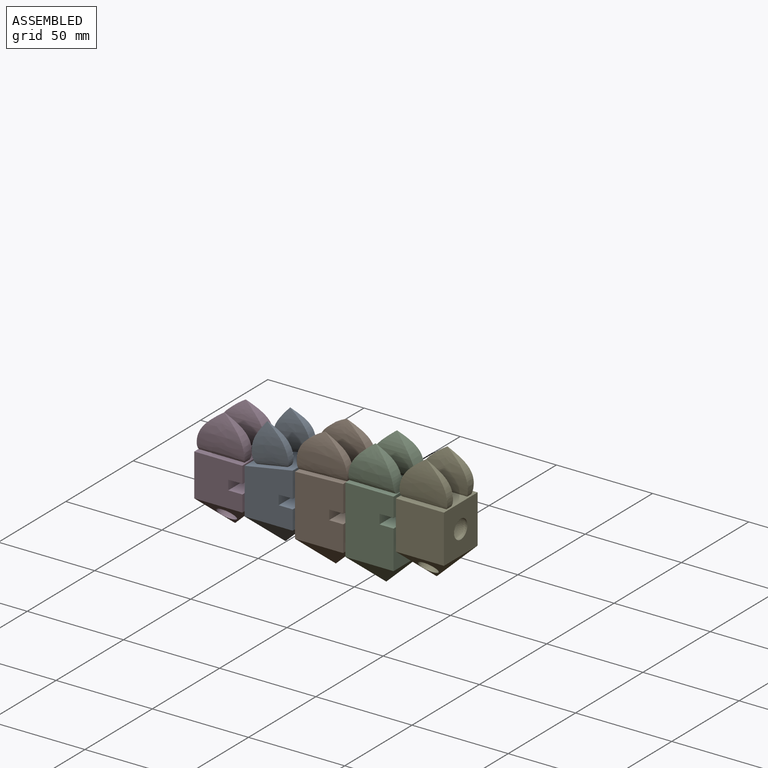
[diagram: assembled view]
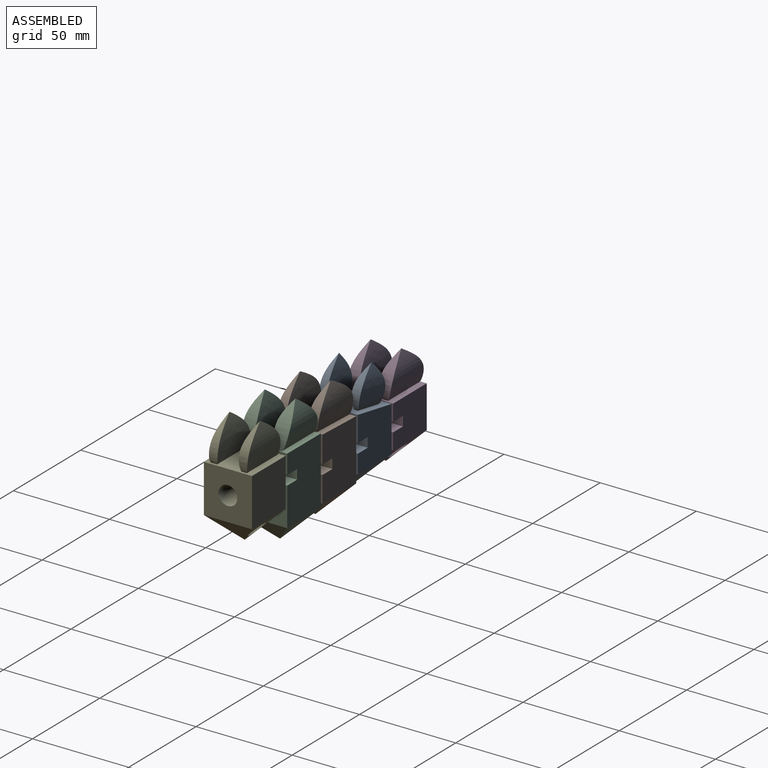
[diagram: assembled view, second angle]
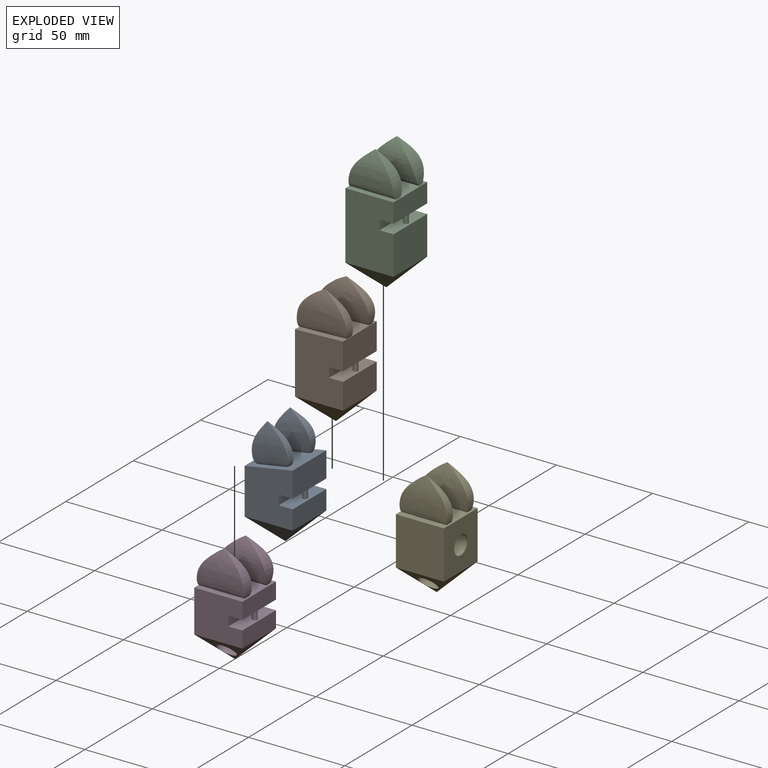
[diagram: exploded view]
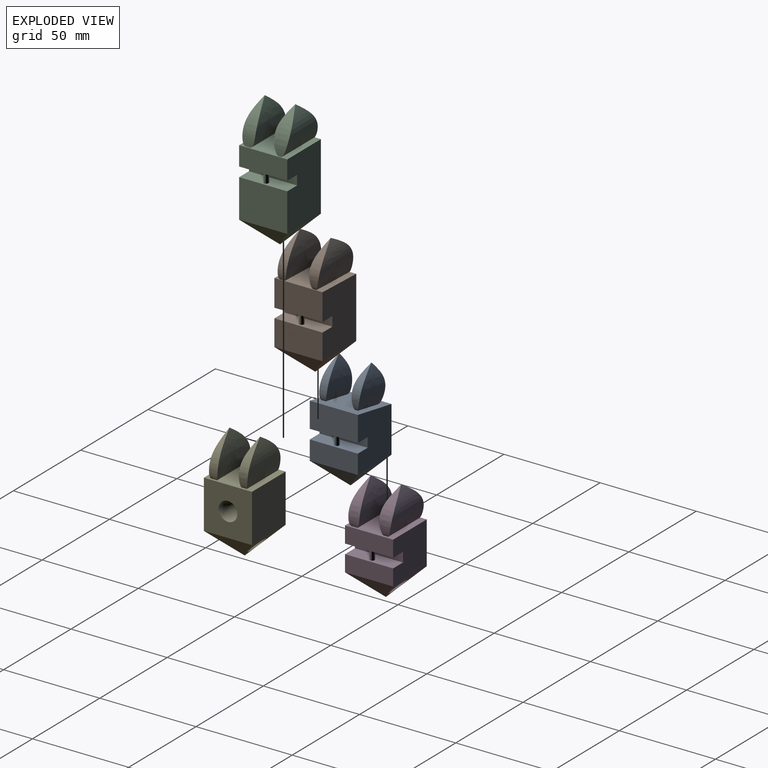
[diagram: exploded view, second angle]
ASSEMBLY  parts=5 mates=8
PART A: 29 faces, bbox 32.8x25x58.7 mm
  f0: plane 25x23.8mm, normal (-1,0,0), area 572.9mm2, adj f2,f4,f5,f7,f22,f23,f24,f25
  f1: plane 25x13.2mm, normal (1,0,0), area 330.1mm2, adj f2,f4,f5,f19
  f2: plane 28.2x25mm, normal (0,-1,0), area 613.5mm2, adj f0,f1,f3,f5,f6,f18,f19,f20
  f3: plane 25x10mm, normal (1,0,0), area 250mm2, adj f2,f4,f9,f18
  f4: plane 28.2x25mm, normal (0,1,0), area 613.5mm2, adj f0,f1,f3,f5,f8,f18,f19,f20
  f5: plane 25x25mm, normal (-0.17,0,0.98), area 599mm2, adj f0,f1,f2,f4,f10,f11,f12,f13
  f6: plane 25x13mm, normal (0,-0.72,-0.69), area 225.4mm2, adj f2,f7,f9
  f7: plane 25x13mm, normal (-0.72,0,-0.69), area 225.4mm2, adj f0,f6,f8
  f8: plane 25x13mm, normal (0,0.72,-0.69), area 225.4mm2, adj f4,f7,f9
  f9: plane 25x13mm, normal (0.72,0,-0.69), area 225.4mm2, adj f3,f6,f8
  f10: bspline ~18.41x12.52mm, area 68mm2, adj f5,f11,f13
  f11: bspline ~21.3x21.29mm, area 286.2mm2, adj f5,f10,f12
  f12: bspline ~21.29x8.84mm, area 68mm2, adj f5,f11,f13
  f13: bspline ~21.3x21.29mm, area 286.2mm2, adj f5,f10,f12
  f14: bspline ~18.41x13.3mm, area 74.5mm2, adj f5,f15,f17
  f15: bspline ~23.24x21.14mm, area 292.9mm2, adj f5,f14,f16
  f16: bspline ~21.14x10.01mm, area 74.5mm2, adj f5,f15,f17
  f17: bspline ~23.24x21.14mm, area 292.9mm2, adj f5,f14,f16
  f18: plane 25x7.3mm, normal (0,0,1), area 177.6mm2, adj f2,f3,f4,f20,f21
  f19: plane 25x7.3mm, normal (0,0,-1), area 177.6mm2, adj f1,f2,f4,f20,f21
  f20: plane 25x5mm, normal (1,0,0), area 125mm2, adj f2,f4,f18,f19
  f21: cylinder r=1.25mm len=5mm, axis (0,0,-1), area 39.3mm2, adj f18,f19
  f22: plane 7.79x7.32mm, normal (0,0,-1), area 40mm2, adj f0,f23,f25,f26,f27,f28
  f23: plane 3.8x3mm, normal (0,-1,0), area 11.4mm2, adj f0,f22,f24,f28
  f24: plane 7.79x7.32mm, normal (0,0,1), area 40mm2, adj f0,f23,f25,f26,f27,f28
  f25: plane 3.8x3mm, normal (0,1,0), area 11.4mm2, adj f0,f22,f24,f27
  f26: cylinder r=1.8mm len=3.6mm, axis (0,0,1), area 33.9mm2, adj f22,f24
  f27: cylinder r=4mm len=3.99mm, axis (0,0,1), area 17.8mm2, adj f22,f24,f25,f28
  f28: cylinder r=4mm len=3.99mm, axis (0,0,-1), area 17.8mm2, adj f22,f23,f24,f27
PART B: 29 faces, bbox 35x25x65 mm
  f0: plane 31.56x25mm, normal (-1,0,0), area 767.1mm2, adj f2,f4,f5,f7,f22,f23,f24,f25
  f1: plane 25x13.94mm, normal (1,0,0), area 348.4mm2, adj f2,f4,f5,f19
  f2: plane 32.44x25mm, normal (0,-1,0), area 763.5mm2, adj f0,f1,f3,f5,f6,f18,f19,f20
  f3: plane 25x13.5mm, normal (1,0,0), area 337.5mm2, adj f2,f4,f9,f18
  f4: plane 32.44x25mm, normal (0,1,0), area 763.5mm2, adj f0,f1,f3,f5,f8,f18,f19,f20
  f5: plane 25x25mm, normal (-0.03,0,1), area 553.4mm2, adj f0,f1,f2,f4,f10,f11,f12,f13
  f6: plane 25x13mm, normal (0,-0.72,-0.69), area 225.4mm2, adj f2,f7,f9
  f7: plane 25x13mm, normal (-0.72,0,-0.69), area 225.4mm2, adj f0,f6,f8
  f8: plane 25x13mm, normal (0,0.72,-0.69), area 225.4mm2, adj f4,f7,f9
  f9: plane 25x13mm, normal (0.72,0,-0.69), area 225.4mm2, adj f3,f6,f8
  f10: bspline ~19.58x13.91mm, area 80.6mm2, adj f5,f11,f13
  f11: bspline ~27.96x20.45mm, area 404.8mm2, adj f5,f10,f12
  f12: bspline ~20.45x14.29mm, area 86.1mm2, adj f5,f11,f13
  f13: bspline ~27.96x20.45mm, area 406.3mm2, adj f5,f10,f12
  f14: bspline ~19.58x14.75mm, area 90.4mm2, adj f5,f15,f17
  f15: bspline ~29.57x20.43mm, area 409mm2, adj f5,f14,f16
  f16: bspline ~20.43x14.94mm, area 95.7mm2, adj f5,f15,f17
  f17: bspline ~29.57x20.43mm, area 407.7mm2, adj f5,f14,f16
  f18: plane 25x7.3mm, normal (0,0,1), area 177.6mm2, adj f2,f3,f4,f20,f21
  f19: plane 25x7.3mm, normal (0,0,-1), area 177.6mm2, adj f1,f2,f4,f20,f21
  f20: plane 25x5mm, normal (1,0,0), area 125mm2, adj f2,f4,f18,f19
  f21: cylinder r=1.25mm len=5mm, axis (0,0,-1), area 39.3mm2, adj f18,f19
  f22: plane 7.79x7.32mm, normal (0,0,-1), area 40mm2, adj f0,f23,f25,f26,f27,f28
  f23: plane 3.8x3mm, normal (0,-1,0), area 11.4mm2, adj f0,f22,f24,f28
  f24: plane 7.79x7.32mm, normal (0,0,1), area 40mm2, adj f0,f23,f25,f26,f27,f28
  f25: plane 3.8x3mm, normal (0,1,0), area 11.4mm2, adj f0,f22,f24,f27
  f26: cylinder r=1.8mm len=3.6mm, axis (0,0,1), area 33.9mm2, adj f22,f24
  f27: cylinder r=4mm len=3.99mm, axis (0,0,1), area 17.8mm2, adj f22,f24,f25,f28
  f28: cylinder r=4mm len=3.99mm, axis (0,0,-1), area 17.8mm2, adj f22,f23,f24,f27
PART C: 29 faces, bbox 32.8x26.6x68 mm
  f0: plane 35x25mm, normal (-1,0,0), area 853mm2, adj f2,f4,f5,f7,f22,f23,f24,f25
  f1: plane 25x10mm, normal (1,0,0), area 250mm2, adj f2,f4,f5,f19
  f2: plane 35x25mm, normal (0,-1,0), area 838.5mm2, adj f0,f1,f3,f5,f6,f18,f19,f20
  f3: plane 25x20mm, normal (1,0,0), area 500mm2, adj f2,f4,f9,f18
  f4: plane 35x25mm, normal (0,1,0), area 838.5mm2, adj f0,f1,f3,f5,f8,f18,f19,f20
  f5: plane 25x25mm, normal (0,0,1), area 553mm2, adj f0,f1,f2,f4,f10,f11,f12,f13
  f6: plane 25x13mm, normal (0,-0.72,-0.69), area 225.4mm2, adj f2,f7,f9
  f7: plane 25x13mm, normal (-0.72,0,-0.69), area 225.4mm2, adj f0,f6,f8
  f8: plane 25x13mm, normal (0,0.72,-0.69), area 225.4mm2, adj f4,f7,f9
  f9: plane 25x13mm, normal (0.72,0,-0.69), area 225.4mm2, adj f3,f6,f8
  f10: bspline ~20x12mm, area 114.1mm2, adj f5,f11,f13
  f11: bspline ~24x20mm, area 368.9mm2, adj f5,f10,f12
  f12: bspline ~20x12mm, area 114.1mm2, adj f5,f11,f13
  f13: bspline ~24x20mm, area 370.7mm2, adj f5,f10,f12
  f14: bspline ~20x12mm, area 128.3mm2, adj f5,f15,f17
  f15: bspline ~24x20mm, area 364.3mm2, adj f5,f14,f16
  f16: bspline ~20x12mm, area 128.3mm2, adj f5,f15,f17
  f17: bspline ~24x20mm, area 363mm2, adj f5,f14,f16
  f18: plane 25x7.3mm, normal (0,0,1), area 177.6mm2, adj f2,f3,f4,f20,f21
  f19: plane 25x7.3mm, normal (0,0,-1), area 177.6mm2, adj f1,f2,f4,f20,f21
  f20: plane 25x5mm, normal (1,0,0), area 125mm2, adj f2,f4,f18,f19
  f21: cylinder r=1.25mm len=5mm, axis (0,0,-1), area 39.3mm2, adj f18,f19
  f22: plane 7.79x7.32mm, normal (0,0,-1), area 40mm2, adj f0,f23,f25,f26,f27,f28
  f23: plane 3.8x3mm, normal (0,-1,0), area 11.4mm2, adj f0,f22,f24,f28
  f24: plane 7.79x7.32mm, normal (0,0,1), area 40mm2, adj f0,f23,f25,f26,f27,f28
  f25: plane 3.8x3mm, normal (0,1,0), area 11.4mm2, adj f0,f22,f24,f27
  f26: cylinder r=1.8mm len=3.6mm, axis (0,0,1), area 33.9mm2, adj f22,f24
  f27: cylinder r=4mm len=3.99mm, axis (0,0,1), area 17.8mm2, adj f22,f24,f25,f28
  f28: cylinder r=4mm len=3.99mm, axis (0,0,-1), area 17.8mm2, adj f22,f23,f24,f27
PART D: 25 faces, bbox 28.1x25.5x55 mm
  f0: plane 25x8.5mm, normal (1,0,0), area 212.5mm2, adj f1,f3,f5,f19
  f1: plane 25x22mm, normal (0,-1,0), area 513.5mm2, adj f0,f2,f4,f5,f6,f18,f19,f20
  f2: plane 25x8.5mm, normal (1,0,0), area 212.5mm2, adj f1,f3,f9,f18
  f3: plane 25x22mm, normal (0,1,0), area 513.5mm2, adj f0,f2,f4,f5,f8,f18,f19,f20
  f4: plane 25x22mm, normal (-1,0,0), area 474.6mm2, adj f1,f3,f5,f7,f24
  f5: plane 25x25mm, normal (0,0,1), area 535mm2, adj f0,f1,f3,f4,f10,f11,f12,f13
  f6: plane 25x13mm, normal (0,-0.72,-0.69), area 150mm2, adj f1,f7,f9,f22
  f7: plane 25x13mm, normal (-0.72,0,-0.69), area 225.4mm2, adj f4,f6,f8
  f8: plane 25x13mm, normal (0,0.72,-0.69), area 150mm2, adj f3,f7,f9,f23
  f9: plane 25x13mm, normal (0.72,0,-0.69), area 225.4mm2, adj f2,f6,f8
  f10: bspline ~20x13.38mm, area 102.9mm2, adj f5,f11,f13
  f11: bspline ~26.41x20mm, area 381.8mm2, adj f5,f10,f12
  f12: bspline ~20x13.38mm, area 102.9mm2, adj f5,f11,f13
  f13: bspline ~26.41x20mm, area 384.6mm2, adj f5,f10,f12
  f14: bspline ~20x14.06mm, area 113.5mm2, adj f5,f15,f17
  f15: bspline ~27.95x20mm, area 385.8mm2, adj f5,f14,f16
  f16: bspline ~20x14.06mm, area 113.5mm2, adj f5,f15,f17
  f17: bspline ~27.95x20mm, area 383.6mm2, adj f5,f14,f16
  f18: plane 25x7.3mm, normal (0,0,1), area 177.6mm2, adj f1,f2,f3,f20,f21
  f19: plane 25x7.3mm, normal (0,0,-1), area 177.6mm2, adj f0,f1,f3,f20,f21
  f20: plane 25x5mm, normal (1,0,0), area 125mm2, adj f1,f3,f18,f19
  f21: cylinder r=1.25mm len=5mm, axis (0,0,-1), area 39.3mm2, adj f18,f19
  f22: sphere r=5.15mm, area 217.9mm2, adj f6
  f23: sphere r=5.15mm, area 217.9mm2, adj f8
  f24: sphere r=5.15mm, area 217.9mm2, adj f4
PART E: 27 faces, bbox 34.3x25x58 mm
  f0: plane 25x25mm, normal (-1,0,0), area 603mm2, adj f1,f3,f4,f6,f19,f20,f21,f22
  f1: plane 25x25mm, normal (0,-1,0), area 625mm2, adj f0,f2,f4,f5
  f2: plane 25x25mm, normal (1,0,0), area 549.6mm2, adj f1,f3,f4,f8,f26
  f3: plane 25x25mm, normal (0,1,0), area 625mm2, adj f0,f2,f4,f7
  f4: plane 25x25mm, normal (0,0,1), area 512.5mm2, adj f0,f1,f2,f3,f9,f10,f11,f12
  f5: plane 25x13mm, normal (0,-0.72,-0.69), area 150mm2, adj f1,f6,f8,f17
  f6: plane 25x13mm, normal (-0.72,0,-0.69), area 225.4mm2, adj f0,f5,f7
  f7: plane 25x13mm, normal (0,0.72,-0.69), area 150mm2, adj f3,f6,f8,f18
  f8: plane 25x13mm, normal (0.72,0,-0.69), area 225.4mm2, adj f2,f5,f7
  f9: bspline ~20x13.26mm, area 79.3mm2, adj f4,f10,f12
  f10: bspline ~26.41x20mm, area 370.9mm2, adj f4,f9,f11
  f11: bspline ~20x13.26mm, area 79.3mm2, adj f4,f10,f12
  f12: bspline ~26.41x20mm, area 370.1mm2, adj f4,f9,f11
  f13: bspline ~20x14mm, area 84.7mm2, adj f4,f14,f16
  f14: bspline ~27.95x20mm, area 373.4mm2, adj f4,f13,f15
  f15: bspline ~20x14mm, area 84.7mm2, adj f4,f14,f16
  f16: bspline ~27.95x20mm, area 374.3mm2, adj f4,f13,f15
  f17: sphere r=5.15mm, area 217.9mm2, adj f5
  f18: sphere r=5.15mm, area 217.9mm2, adj f7
  f19: plane 7.79x7.32mm, normal (0,0,-1), area 40mm2, adj f0,f20,f22,f23,f24,f25
  f20: plane 3.8x3mm, normal (0,-1,0), area 11.4mm2, adj f0,f19,f21,f25
  f21: plane 7.79x7.32mm, normal (0,0,1), area 40mm2, adj f0,f20,f22,f23,f24,f25
  f22: plane 3.8x3mm, normal (0,1,0), area 11.4mm2, adj f0,f19,f21,f24
  f23: cylinder r=1.8mm len=3.6mm, axis (0,0,1), area 33.9mm2, adj f19,f21
  f24: cylinder r=4mm len=3.99mm, axis (0,0,1), area 17.8mm2, adj f19,f21,f22,f25
  f25: cylinder r=4mm len=3.99mm, axis (0,0,-1), area 17.8mm2, adj f19,f20,f21,f24
  f26: sphere r=5.15mm, area 217.9mm2, adj f2
PLACE A t=(-15.44,-0.44,4.76)mm
PLACE B t=(10.76,-0.44,4.76)mm
PLACE C t=(36.96,-0.44,4.76)mm
PLACE D t=(-41.64,-0.44,4.76)mm
PLACE E t=(63.16,-0.44,9.26)mm
MATE slider E.f23 <-> C.f21  axis (0,0,1) through (47.16,-0.44,10.76)mm
MATE slider C.f26 <-> B.f21  axis (0,0,1) through (20.96,-0.44,6.26)mm
MATE slider B.f26 <-> A.f21  axis (0,0,1) through (-5.24,-0.44,6.26)mm
MATE slider A.f26 <-> D.f21  axis (0,0,1) through (-31.44,-0.44,6.26)mm
MATE revolute B.f26 <-> A.f21  axis (0,0,1) through (-5.24,-0.44,6.26)mm
MATE revolute C.f26 <-> B.f21  axis (0,0,1) through (20.96,-0.44,6.26)mm
MATE revolute A.f26 <-> D.f21  axis (0,0,1) through (-31.44,-0.44,6.26)mm
MATE revolute E.f23 <-> C.f21  axis (0,0,1) through (47.16,-0.44,10.76)mm
